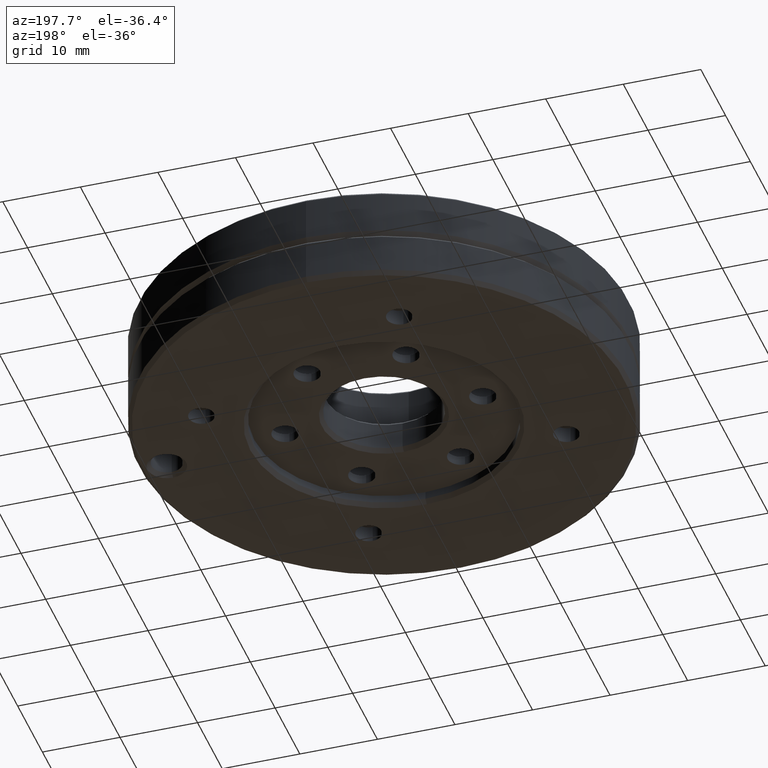
[diagram: clean part render]
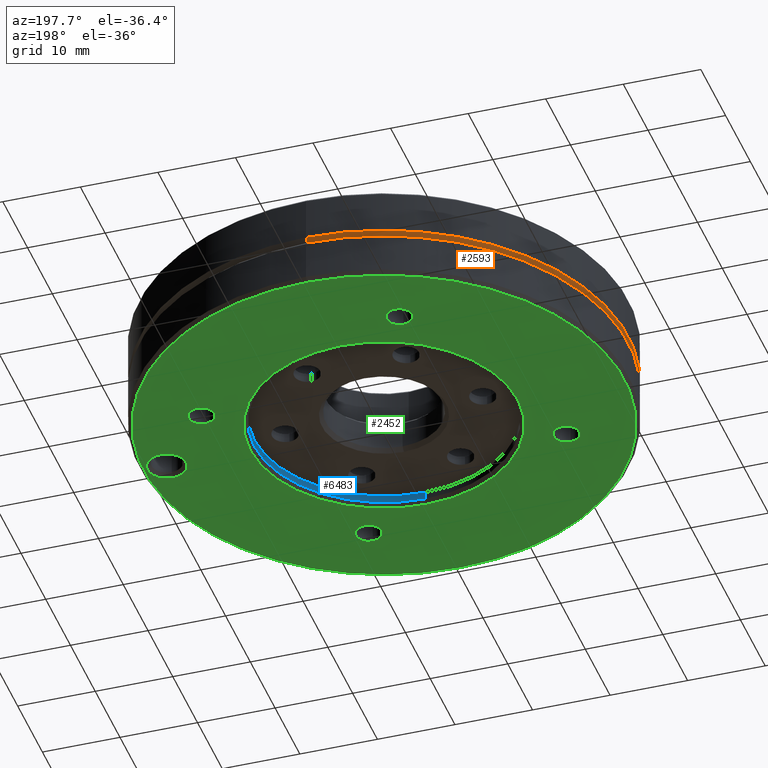
[diagram: same view with three faces highlighted in distinct colors, each labeled with its STEP entity id]
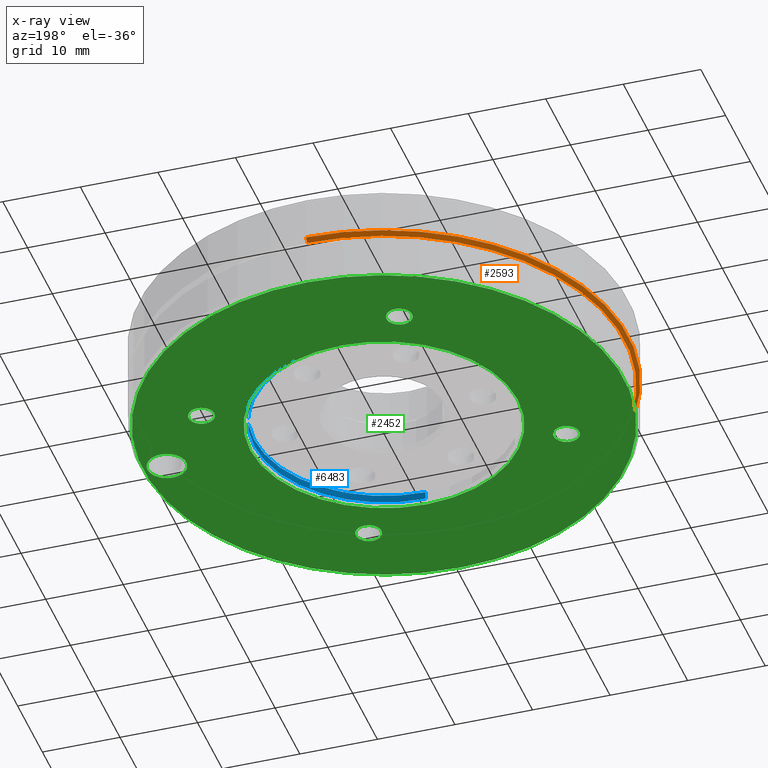
[diagram: x-ray of the same camera — body ghosted, the three highlighted faces saturated]
A machine part, auxiliary view with three faces highlighted in distinct colors.
The next image is the same camera in x-ray (body ghosted, the three faces saturated) — at least one of them is partly hidden behind the body in this view.
Their STEP definitions:

[orange] entity #2593 — the highlighted conical surface has half-angle 45 deg.
#59 = DIRECTION ( 'NONE',  ( 1.258479170906437262E-16, 0.7071067811865474617, 0.7071067811865474617 ) ) ;
#127 = CARTESIAN_POINT ( 'NONE',  ( 3.885392992929793969E-15, 31.50000000000000000, 0.5000000000000490719 ) ) ;
#396 = CONICAL_SURFACE ( 'NONE', #1159, 31.50000000000000000, 0.7853981633974482790 ) ;
#701 = VERTEX_POINT ( 'NONE', #3267 ) ;
#760 = CARTESIAN_POINT ( 'NONE',  ( 2.775557561563163755E-17, 4.061450459286809573E-42, 0.5000000000000490719 ) ) ;
#947 = LINE ( 'NONE', #4596, #4402 ) ;
#1087 = CARTESIAN_POINT ( 'NONE',  ( 2.775557561563163755E-17, 4.061450459286809573E-42, 0.5000000000000490719 ) ) ;
#1150 = ORIENTED_EDGE ( 'NONE', *, *, #2309, .F. ) ;
#1159 = AXIS2_PLACEMENT_3D ( 'NONE', #1087, #5274, #4162 ) ;
#1238 = EDGE_CURVE ( 'NONE', #2260, #4755, #2474, .T. ) ;
#1302 = DIRECTION ( 'NONE',  ( -6.415097052126652424E-43, -1.000000000000000000, -6.583955517712617581E-42 ) ) ;
#1397 = CARTESIAN_POINT ( 'NONE',  ( 3.840899035143290992E-15, 30.99999999999995026, -2.132127274556414159E-31 ) ) ;
#2260 = VERTEX_POINT ( 'NONE', #1397 ) ;
#2309 = EDGE_CURVE ( 'NONE', #4755, #701, #6632, .T. ) ;
#2474 = LINE ( 'NONE', #127, #4590 ) ;
#2569 = CIRCLE ( 'NONE', #4087, 30.99999999999995026 ) ;
#2593 = ADVANCED_FACE ( 'NONE', ( #3219 ), #396, .T. ) ;
#2820 = DIRECTION ( 'NONE',  ( 5.551115123125782702E-17, 8.122900918572823875E-42, 1.000000000000000000 ) ) ;
#2891 = DIRECTION ( 'NONE',  ( 0.0000000000000000000, -1.000000000000000000, 0.0000000000000000000 ) ) ;
#2975 = EDGE_LOOP ( 'NONE', ( #3055, #5490, #5283, #1150 ) ) ;
#3055 = ORIENTED_EDGE ( 'NONE', *, *, #1238, .F. ) ;
#3180 = CARTESIAN_POINT ( 'NONE',  ( -1.988680086159259113E-41, -30.99999999999995026, -2.041026210490908277E-40 ) ) ;
#3219 = FACE_OUTER_BOUND ( 'NONE', #2975, .T. ) ;
#3267 = CARTESIAN_POINT ( 'NONE',  ( 4.038048658815752993E-15, -31.50000000000000000, 0.5000000000000490719 ) ) ;
#3714 = AXIS2_PLACEMENT_3D ( 'NONE', #760, #2820, #2891 ) ;
#4087 = AXIS2_PLACEMENT_3D ( 'NONE', #5342, #5921, #1302 ) ;
#4162 = DIRECTION ( 'NONE',  ( 0.0000000000000000000, -1.000000000000000000, 0.0000000000000000000 ) ) ;
#4402 = VECTOR ( 'NONE', #5034, 1000.000000000000114 ) ;
#4590 = VECTOR ( 'NONE', #59, 1000.000000000000114 ) ;
#4596 = CARTESIAN_POINT ( 'NONE',  ( 2.775557561563163755E-17, -31.50000000000000000, 0.5000000000000490719 ) ) ;
#4755 = VERTEX_POINT ( 'NONE', #6574 ) ;
#4974 = EDGE_CURVE ( 'NONE', #5320, #2260, #2569, .T. ) ;
#5034 = DIRECTION ( 'NONE',  ( 3.925231146709437301E-17, -0.7071067811865474617, 0.7071067811865474617 ) ) ;
#5274 = DIRECTION ( 'NONE',  ( 5.551115123125782702E-17, 8.122900918572823875E-42, 1.000000000000000000 ) ) ;
#5283 = ORIENTED_EDGE ( 'NONE', *, *, #5597, .T. ) ;
#5320 = VERTEX_POINT ( 'NONE', #3180 ) ;
#5342 = CARTESIAN_POINT ( 'NONE',  ( 0.0000000000000000000, 0.0000000000000000000, 0.0000000000000000000 ) ) ;
#5490 = ORIENTED_EDGE ( 'NONE', *, *, #4974, .F. ) ;
#5597 = EDGE_CURVE ( 'NONE', #5320, #701, #947, .T. ) ;
#5921 = DIRECTION ( 'NONE',  ( -5.551115123125782702E-17, -8.122900918572823875E-42, -1.000000000000000000 ) ) ;
#6574 = CARTESIAN_POINT ( 'NONE',  ( 1.804112415015910193E-16, 31.50000000000000000, 0.5000000000000490719 ) ) ;
#6632 = CIRCLE ( 'NONE', #3714, 31.50000000000000000 ) ;

[blue] entity #6483 — the highlighted cylindrical surface (partial cylindrical patch) has radius 16.75 mm, axis along (0, 0, -1).
#47 = EDGE_CURVE ( 'NONE', #2175, #3759, #5704, .T. ) ;
#137 = DIRECTION ( 'NONE',  ( -9.367506770274758310E-15, -1.000000000000000000, -1.657049290485305361E-15 ) ) ;
#171 = CARTESIAN_POINT ( 'NONE',  ( -1.589428308339863089E-13, -16.74999999999999289, -4.500000000000028422 ) ) ;
#269 = DIRECTION ( 'NONE',  ( 8.357693029993984519E-16, 1.654786224869864480E-15, -1.000000000000000000 ) ) ;
#510 = EDGE_CURVE ( 'NONE', #2156, #2982, #4918, .T. ) ;
#512 = CYLINDRICAL_SURFACE ( 'NONE', #6113, 16.75000000000002842 ) ;
#547 = CARTESIAN_POINT ( 'NONE',  ( -1.589428308339863089E-13, -16.74999999999999289, -5.500000000000034639 ) ) ;
#902 = CARTESIAN_POINT ( 'NONE',  ( -4.506260471955611325E-15, 5.324076304590836191E-15, -4.500000000000000888 ) ) ;
#1226 = CARTESIAN_POINT ( 'NONE',  ( 1.528173625816462871E-13, 16.75000000000000711, -5.499999999999978684 ) ) ;
#1324 = ORIENTED_EDGE ( 'NONE', *, *, #4183, .T. ) ;
#1366 = LINE ( 'NONE', #2381, #2314 ) ;
#1589 = LINE ( 'NONE', #3651, #1814 ) ;
#1629 = ORIENTED_EDGE ( 'NONE', *, *, #2198, .F. ) ;
#1656 = EDGE_LOOP ( 'NONE', ( #1629, #3147, #1324, #2779 ) ) ;
#1814 = VECTOR ( 'NONE', #4794, 1000.000000000000000 ) ;
#2156 = VERTEX_POINT ( 'NONE', #171 ) ;
#2175 = VERTEX_POINT ( 'NONE', #1226 ) ;
#2198 = EDGE_CURVE ( 'NONE', #2156, #3759, #1366, .T. ) ;
#2314 = VECTOR ( 'NONE', #269, 1000.000000000000000 ) ;
#2381 = CARTESIAN_POINT ( 'NONE',  ( -1.593607154854862746E-13, -16.75000000000002132, -4.500000000000028422 ) ) ;
#2578 = DIRECTION ( 'NONE',  ( 9.367506770274758310E-15, 1.000000000000000000, 1.657049290485305361E-15 ) ) ;
#2580 = AXIS2_PLACEMENT_3D ( 'NONE', #5446, #4779, #137 ) ;
#2607 = CARTESIAN_POINT ( 'NONE',  ( -4.506260471955611325E-15, 5.324076304590836191E-15, -4.500000000000000888 ) ) ;
#2779 = ORIENTED_EDGE ( 'NONE', *, *, #47, .T. ) ;
#2982 = VERTEX_POINT ( 'NONE', #4149 ) ;
#3147 = ORIENTED_EDGE ( 'NONE', *, *, #510, .T. ) ;
#3541 = DIRECTION ( 'NONE',  ( -8.357693029993984519E-16, -1.654786224869864480E-15, 1.000000000000000000 ) ) ;
#3651 = CARTESIAN_POINT ( 'NONE',  ( 1.523994779301468515E-13, 16.75000000000003553, -4.499999999999972466 ) ) ;
#3759 = VERTEX_POINT ( 'NONE', #547 ) ;
#4149 = CARTESIAN_POINT ( 'NONE',  ( 1.528173625816462618E-13, 16.75000000000000711, -4.499999999999972466 ) ) ;
#4166 = DIRECTION ( 'NONE',  ( 8.357693029993984519E-16, 1.654786224869864480E-15, -1.000000000000000000 ) ) ;
#4183 = EDGE_CURVE ( 'NONE', #2982, #2175, #1589, .T. ) ;
#4779 = DIRECTION ( 'NONE',  ( 8.357693029993984519E-16, 1.654786224869864480E-15, -1.000000000000000000 ) ) ;
#4794 = DIRECTION ( 'NONE',  ( 8.357693029993984519E-16, 1.654786224869864480E-15, -1.000000000000000000 ) ) ;
#4918 = CIRCLE ( 'NONE', #6434, 16.75000000000002842 ) ;
#5446 = CARTESIAN_POINT ( 'NONE',  ( -3.670491168956210802E-15, 6.978862529460717631E-15, -5.500000000000006217 ) ) ;
#5603 = DIRECTION ( 'NONE',  ( -9.367506770274758310E-15, -1.000000000000000000, -1.657049290485305361E-15 ) ) ;
#5680 = FACE_OUTER_BOUND ( 'NONE', #1656, .T. ) ;
#5704 = CIRCLE ( 'NONE', #2580, 16.75000000000002842 ) ;
#6113 = AXIS2_PLACEMENT_3D ( 'NONE', #2607, #4166, #2578 ) ;
#6434 = AXIS2_PLACEMENT_3D ( 'NONE', #902, #3541, #5603 ) ;
#6483 = ADVANCED_FACE ( 'NONE', ( #5680 ), #512, .F. ) ;

[green] entity #2452 — the highlighted planar face has unit normal (-0, -0, 1).
#102 = DIRECTION ( 'NONE',  ( -8.357693029993984519E-16, -1.654786224869864480E-15, 1.000000000000000000 ) ) ;
#166 = ORIENTED_EDGE ( 'NONE', *, *, #6482, .T. ) ;
#178 = CARTESIAN_POINT ( 'NONE',  ( 8.610377228214366241, -19.13728948150404818, -6.000000000000023981 ) ) ;
#184 = ORIENTED_EDGE ( 'NONE', *, *, #1408, .T. ) ;
#201 = CARTESIAN_POINT ( 'NONE',  ( -1.627295825761670580E-13, -17.25000000000000711, -6.000000000000028422 ) ) ;
#203 = CARTESIAN_POINT ( 'NONE',  ( 1.583368852697832190E-13, 17.25000000000002132, -5.999999999999971578 ) ) ;
#338 = EDGE_CURVE ( 'NONE', #1373, #1985, #4297, .T. ) ;
#408 = FACE_BOUND ( 'NONE', #6168, .T. ) ;
#508 = FACE_BOUND ( 'NONE', #4073, .T. ) ;
#658 = DIRECTION ( 'NONE',  ( -9.714451465470149705E-15, -1.000000000000000000, -1.734723475976812419E-15 ) ) ;
#703 = CARTESIAN_POINT ( 'NONE',  ( 20.78728948150404676, 8.610377228214362688, -5.999999999999968914 ) ) ;
#708 = DIRECTION ( 'NONE',  ( -8.357693029993984519E-16, -1.654786224869864480E-15, 1.000000000000000000 ) ) ;
#711 = ORIENTED_EDGE ( 'NONE', *, *, #3944, .T. ) ;
#822 = AXIS2_PLACEMENT_3D ( 'NONE', #6333, #1715, #5689 ) ;
#916 = CARTESIAN_POINT ( 'NONE',  ( 28.00000000000002132, -2.500000000000247802, -5.999999999999981348 ) ) ;
#997 = FACE_OUTER_BOUND ( 'NONE', #5495, .T. ) ;
#1029 = DIRECTION ( 'NONE',  ( -8.410780489584516903E-15, -1.000000000000000000, -1.577021341797097018E-15 ) ) ;
#1061 = DIRECTION ( 'NONE',  ( -8.357693029993984519E-16, -1.654786224869864480E-15, 1.000000000000000000 ) ) ;
#1065 = CARTESIAN_POINT ( 'NONE',  ( -8.610377228214373346, 19.13728948150405884, -5.999999999999976019 ) ) ;
#1105 = DIRECTION ( 'NONE',  ( -9.367506770274758310E-15, -1.000000000000000000, -1.650785243268248973E-15 ) ) ;
#1139 = CARTESIAN_POINT ( 'NONE',  ( -3.252606517456513302E-15, 7.806255641895631925E-15, -6.000000000000000000 ) ) ;
#1194 = VERTEX_POINT ( 'NONE', #2440 ) ;
#1227 = VERTEX_POINT ( 'NONE', #916 ) ;
#1256 = AXIS2_PLACEMENT_3D ( 'NONE', #3626, #4774, #6286 ) ;
#1309 = CARTESIAN_POINT ( 'NONE',  ( 2.931000589752157613E-13, 31.00000000000001421, -5.999999999999949374 ) ) ;
#1343 = DIRECTION ( 'NONE',  ( -8.357693029993984519E-16, -1.654786224869864480E-15, 1.000000000000000000 ) ) ;
#1373 = VERTEX_POINT ( 'NONE', #6352 ) ;
#1408 = EDGE_CURVE ( 'NONE', #3978, #6159, #3296, .T. ) ;
#1415 = EDGE_CURVE ( 'NONE', #3485, #3261, #5337, .T. ) ;
#1462 = DIRECTION ( 'NONE',  ( -9.367506770274759888E-15, -1.000000000000000000, -1.654786224869863889E-15 ) ) ;
#1492 = AXIS2_PLACEMENT_3D ( 'NONE', #4307, #6331, #658 ) ;
#1561 = FACE_BOUND ( 'NONE', #2557, .T. ) ;
#1704 = EDGE_CURVE ( 'NONE', #4593, #3557, #6424, .T. ) ;
#1715 = DIRECTION ( 'NONE',  ( -8.357693029993984519E-16, -1.654786224869864480E-15, 1.000000000000000000 ) ) ;
#1775 = CIRCLE ( 'NONE', #5010, 1.650000000000002132 ) ;
#1822 = CIRCLE ( 'NONE', #2140, 2.499999999999992450 ) ;
#1873 = EDGE_CURVE ( 'NONE', #3261, #3485, #1775, .T. ) ;
#1894 = AXIS2_PLACEMENT_3D ( 'NONE', #3417, #708, #3854 ) ;
#1905 = CARTESIAN_POINT ( 'NONE',  ( -8.610377228214344925, 22.43728948150405955, -5.999999999999970690 ) ) ;
#1906 = ORIENTED_EDGE ( 'NONE', *, *, #1415, .T. ) ;
#1956 = CARTESIAN_POINT ( 'NONE',  ( 20.78728948150403255, 6.960377228214362333, -5.999999999999971578 ) ) ;
#1969 = EDGE_LOOP ( 'NONE', ( #184, #2880 ) ) ;
#1985 = VERTEX_POINT ( 'NONE', #1956 ) ;
#2101 = CARTESIAN_POINT ( 'NONE',  ( -20.78728948150405387, -8.610377228214348477, -6.000000000000031086 ) ) ;
#2140 = AXIS2_PLACEMENT_3D ( 'NONE', #3988, #4566, #6623 ) ;
#2183 = ORIENTED_EDGE ( 'NONE', *, *, #6224, .T. ) ;
#2224 = VERTEX_POINT ( 'NONE', #201 ) ;
#2440 = CARTESIAN_POINT ( 'NONE',  ( 28.00000000000007105, 2.499999999999736655, -5.999999999999972466 ) ) ;
#2452 = ADVANCED_FACE ( 'NONE', ( #4061, #3562, #997, #408, #508, #2575, #1561 ), #5619, .F. ) ;
#2476 = ORIENTED_EDGE ( 'NONE', *, *, #3836, .T. ) ;
#2478 = CARTESIAN_POINT ( 'NONE',  ( -3.252606517456513302E-15, 7.806255641895631925E-15, -6.000000000000000000 ) ) ;
#2544 = CIRCLE ( 'NONE', #822, 1.650000000000002132 ) ;
#2557 = EDGE_LOOP ( 'NONE', ( #2183, #5120 ) ) ;
#2575 = FACE_BOUND ( 'NONE', #1969, .T. ) ;
#2656 = CARTESIAN_POINT ( 'NONE',  ( -3.252606517456513302E-15, 7.806255641895631925E-15, -6.000000000000000000 ) ) ;
#2768 = DIRECTION ( 'NONE',  ( -8.357693029993984519E-16, -1.654786224869864480E-15, 1.000000000000000000 ) ) ;
#2878 = CIRCLE ( 'NONE', #3198, 1.650000000000002132 ) ;
#2880 = ORIENTED_EDGE ( 'NONE', *, *, #6494, .T. ) ;
#3012 = ORIENTED_EDGE ( 'NONE', *, *, #3930, .T. ) ;
#3035 = CIRCLE ( 'NONE', #4861, 17.25000000000001421 ) ;
#3090 = DIRECTION ( 'NONE',  ( -8.410780489584509014E-15, -1.000000000000000000, -1.577021341797095243E-15 ) ) ;
#3125 = DIRECTION ( 'NONE',  ( -9.462128050782572247E-15, -1.000000000000000000, -1.577021341797095243E-15 ) ) ;
#3165 = DIRECTION ( 'NONE',  ( -8.357693029993984519E-16, -1.654786224869864480E-15, 1.000000000000000000 ) ) ;
#3185 = CARTESIAN_POINT ( 'NONE',  ( -8.610377228214357359, 20.78728948150406097, -5.999999999999973355 ) ) ;
#3198 = AXIS2_PLACEMENT_3D ( 'NONE', #3185, #102, #3125 ) ;
#3261 = VERTEX_POINT ( 'NONE', #6680 ) ;
#3296 = CIRCLE ( 'NONE', #1894, 1.650000000000002132 ) ;
#3367 = EDGE_CURVE ( 'NONE', #2224, #3880, #3035, .T. ) ;
#3417 = CARTESIAN_POINT ( 'NONE',  ( -20.78728948150405387, -8.610377228214348477, -6.000000000000031086 ) ) ;
#3485 = VERTEX_POINT ( 'NONE', #178 ) ;
#3521 = EDGE_LOOP ( 'NONE', ( #166, #4641 ) ) ;
#3557 = VERTEX_POINT ( 'NONE', #3907 ) ;
#3562 = FACE_BOUND ( 'NONE', #3521, .T. ) ;
#3626 = CARTESIAN_POINT ( 'NONE',  ( -3.252606517456513302E-15, 7.806255641895631925E-15, -6.000000000000000000 ) ) ;
#3633 = CARTESIAN_POINT ( 'NONE',  ( -20.78728948150403966, -6.960377228214350787, -6.000000000000028422 ) ) ;
#3667 = VERTEX_POINT ( 'NONE', #1065 ) ;
#3836 = EDGE_CURVE ( 'NONE', #1227, #1194, #6456, .T. ) ;
#3854 = DIRECTION ( 'NONE',  ( -8.410780489584509014E-15, -1.000000000000000000, -1.577021341797095243E-15 ) ) ;
#3872 = DIRECTION ( 'NONE',  ( 8.357693029993984519E-16, 1.654786224869864480E-15, -1.000000000000000000 ) ) ;
#3880 = VERTEX_POINT ( 'NONE', #203 ) ;
#3907 = CARTESIAN_POINT ( 'NONE',  ( -2.936453163959745763E-13, -31.00000000000004974, -6.000000000000051514 ) ) ;
#3910 = CARTESIAN_POINT ( 'NONE',  ( 8.610377228214353806, -20.78728948150404676, -6.000000000000026645 ) ) ;
#3930 = EDGE_CURVE ( 'NONE', #3557, #4593, #5050, .T. ) ;
#3944 = EDGE_CURVE ( 'NONE', #1194, #1227, #1822, .T. ) ;
#3946 = DIRECTION ( 'NONE',  ( -8.410780489584516903E-15, -1.000000000000000000, -1.577021341797097018E-15 ) ) ;
#3978 = VERTEX_POINT ( 'NONE', #4052 ) ;
#3988 = CARTESIAN_POINT ( 'NONE',  ( 28.00000000000004619, -2.553777873846646011E-13, -5.999999999999976907 ) ) ;
#4052 = CARTESIAN_POINT ( 'NONE',  ( -20.78728948150406453, -10.26037722821435061, -6.000000000000033751 ) ) ;
#4061 = FACE_BOUND ( 'NONE', #5672, .T. ) ;
#4065 = CARTESIAN_POINT ( 'NONE',  ( 20.78728948150404676, 8.610377228214362688, -5.999999999999968914 ) ) ;
#4073 = EDGE_LOOP ( 'NONE', ( #5929, #1906 ) ) ;
#4184 = DIRECTION ( 'NONE',  ( 8.357693029993984519E-16, 1.654786224869864480E-15, -1.000000000000000000 ) ) ;
#4297 = CIRCLE ( 'NONE', #5158, 1.650000000000000355 ) ;
#4307 = CARTESIAN_POINT ( 'NONE',  ( 28.00000000000004619, -2.553777873846646011E-13, -5.999999999999976907 ) ) ;
#4324 = DIRECTION ( 'NONE',  ( -9.462128050782572247E-15, -1.000000000000000000, -1.577021341797095243E-15 ) ) ;
#4544 = DIRECTION ( 'NONE',  ( -8.357693029993983533E-16, -1.654786224869856000E-15, 1.000000000000000000 ) ) ;
#4566 = DIRECTION ( 'NONE',  ( -8.357693029993984519E-16, -1.654786224869864480E-15, 1.000000000000000000 ) ) ;
#4593 = VERTEX_POINT ( 'NONE', #1309 ) ;
#4613 = DIRECTION ( 'NONE',  ( -8.357693029993984519E-16, -1.654786224869864480E-15, 1.000000000000000000 ) ) ;
#4619 = AXIS2_PLACEMENT_3D ( 'NONE', #4065, #4613, #1029 ) ;
#4641 = ORIENTED_EDGE ( 'NONE', *, *, #3367, .T. ) ;
#4661 = ORIENTED_EDGE ( 'NONE', *, *, #1704, .T. ) ;
#4707 = CIRCLE ( 'NONE', #1256, 17.25000000000001421 ) ;
#4746 = EDGE_CURVE ( 'NONE', #1985, #1373, #5053, .T. ) ;
#4774 = DIRECTION ( 'NONE',  ( -8.357693029993984519E-16, -1.654786224869864480E-15, 1.000000000000000000 ) ) ;
#4801 = AXIS2_PLACEMENT_3D ( 'NONE', #1139, #4184, #1105 ) ;
#4861 = AXIS2_PLACEMENT_3D ( 'NONE', #2656, #3165, #6269 ) ;
#4937 = DIRECTION ( 'NONE',  ( -8.357693029993984519E-16, -1.654786224869864480E-15, 1.000000000000000000 ) ) ;
#5010 = AXIS2_PLACEMENT_3D ( 'NONE', #3910, #1343, #5459 ) ;
#5029 = CIRCLE ( 'NONE', #5239, 1.650000000000002132 ) ;
#5050 = CIRCLE ( 'NONE', #6135, 31.00000000000005684 ) ;
#5053 = CIRCLE ( 'NONE', #4619, 1.650000000000000355 ) ;
#5092 = VERTEX_POINT ( 'NONE', #1905 ) ;
#5120 = ORIENTED_EDGE ( 'NONE', *, *, #6454, .T. ) ;
#5144 = ORIENTED_EDGE ( 'NONE', *, *, #338, .T. ) ;
#5158 = AXIS2_PLACEMENT_3D ( 'NONE', #703, #2768, #3946 ) ;
#5239 = AXIS2_PLACEMENT_3D ( 'NONE', #2101, #1061, #3090 ) ;
#5313 = CARTESIAN_POINT ( 'NONE',  ( -3.252606517456513302E-15, 7.806255641895631925E-15, -6.000000000000000000 ) ) ;
#5337 = CIRCLE ( 'NONE', #5879, 1.650000000000002132 ) ;
#5459 = DIRECTION ( 'NONE',  ( -9.462128050782572247E-15, -1.000000000000000000, -1.577021341797095243E-15 ) ) ;
#5495 = EDGE_LOOP ( 'NONE', ( #3012, #4661 ) ) ;
#5619 = PLANE ( 'NONE',  #6554 ) ;
#5672 = EDGE_LOOP ( 'NONE', ( #711, #2476 ) ) ;
#5689 = DIRECTION ( 'NONE',  ( -9.462128050782572247E-15, -1.000000000000000000, -1.577021341797095243E-15 ) ) ;
#5798 = ORIENTED_EDGE ( 'NONE', *, *, #4746, .T. ) ;
#5879 = AXIS2_PLACEMENT_3D ( 'NONE', #6010, #4937, #4324 ) ;
#5926 = DIRECTION ( 'NONE',  ( -9.367506770274758310E-15, -1.000000000000000000, -1.650785243268248973E-15 ) ) ;
#5929 = ORIENTED_EDGE ( 'NONE', *, *, #1873, .T. ) ;
#6010 = CARTESIAN_POINT ( 'NONE',  ( 8.610377228214353806, -20.78728948150404676, -6.000000000000026645 ) ) ;
#6135 = AXIS2_PLACEMENT_3D ( 'NONE', #5313, #3872, #5926 ) ;
#6159 = VERTEX_POINT ( 'NONE', #3633 ) ;
#6168 = EDGE_LOOP ( 'NONE', ( #5798, #5144 ) ) ;
#6224 = EDGE_CURVE ( 'NONE', #3667, #5092, #2544, .T. ) ;
#6269 = DIRECTION ( 'NONE',  ( -9.367506770274759888E-15, -1.000000000000000000, -1.659300716151727093E-15 ) ) ;
#6286 = DIRECTION ( 'NONE',  ( -9.367506770274759888E-15, -1.000000000000000000, -1.659300716151727093E-15 ) ) ;
#6331 = DIRECTION ( 'NONE',  ( -8.357693029993984519E-16, -1.654786224869864480E-15, 1.000000000000000000 ) ) ;
#6333 = CARTESIAN_POINT ( 'NONE',  ( -8.610377228214357359, 20.78728948150406097, -5.999999999999973355 ) ) ;
#6352 = CARTESIAN_POINT ( 'NONE',  ( 20.78728948150406097, 10.26037722821436127, -5.999999999999966249 ) ) ;
#6424 = CIRCLE ( 'NONE', #4801, 31.00000000000005684 ) ;
#6454 = EDGE_CURVE ( 'NONE', #5092, #3667, #2878, .T. ) ;
#6456 = CIRCLE ( 'NONE', #1492, 2.499999999999992450 ) ;
#6482 = EDGE_CURVE ( 'NONE', #3880, #2224, #4707, .T. ) ;
#6494 = EDGE_CURVE ( 'NONE', #6159, #3978, #5029, .T. ) ;
#6554 = AXIS2_PLACEMENT_3D ( 'NONE', #2478, #4544, #1462 ) ;
#6623 = DIRECTION ( 'NONE',  ( -9.714451465470149705E-15, -1.000000000000000000, -1.734723475976812419E-15 ) ) ;
#6680 = CARTESIAN_POINT ( 'NONE',  ( 8.610377228214339596, -22.43728948150404889, -6.000000000000029310 ) ) ;